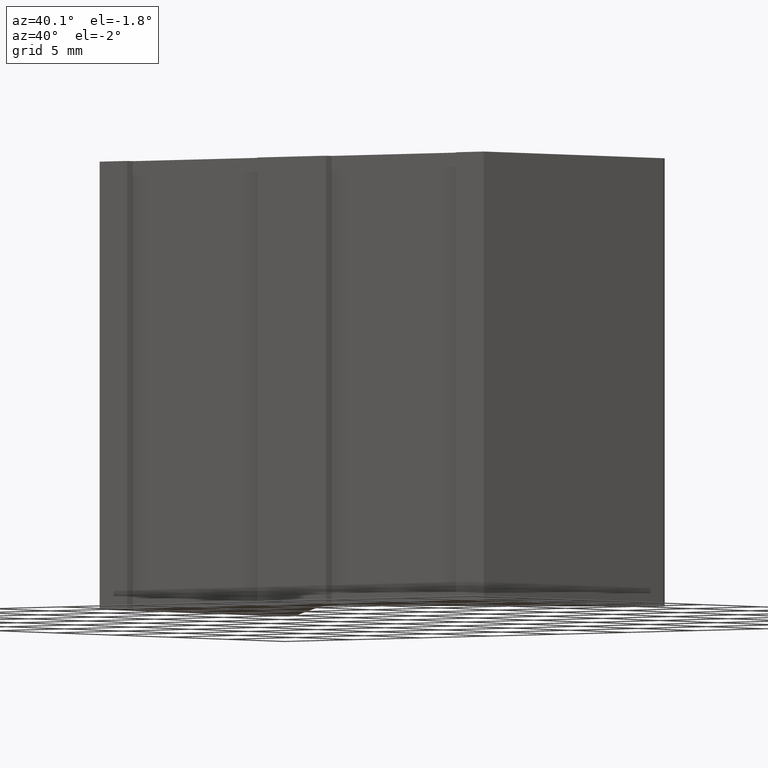
[diagram: clean part render]
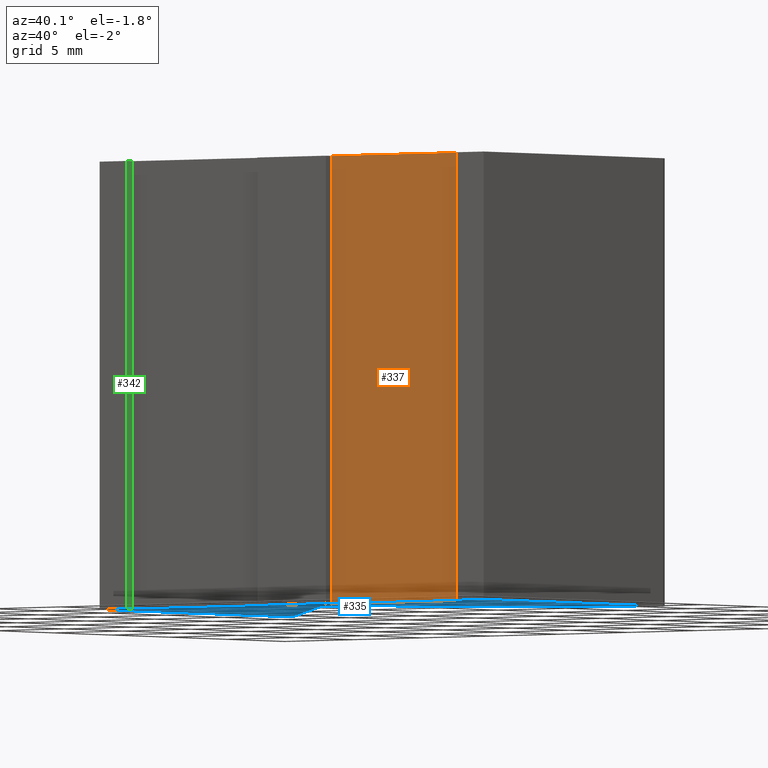
[diagram: same view with three faces highlighted in distinct colors, each labeled with its STEP entity id]
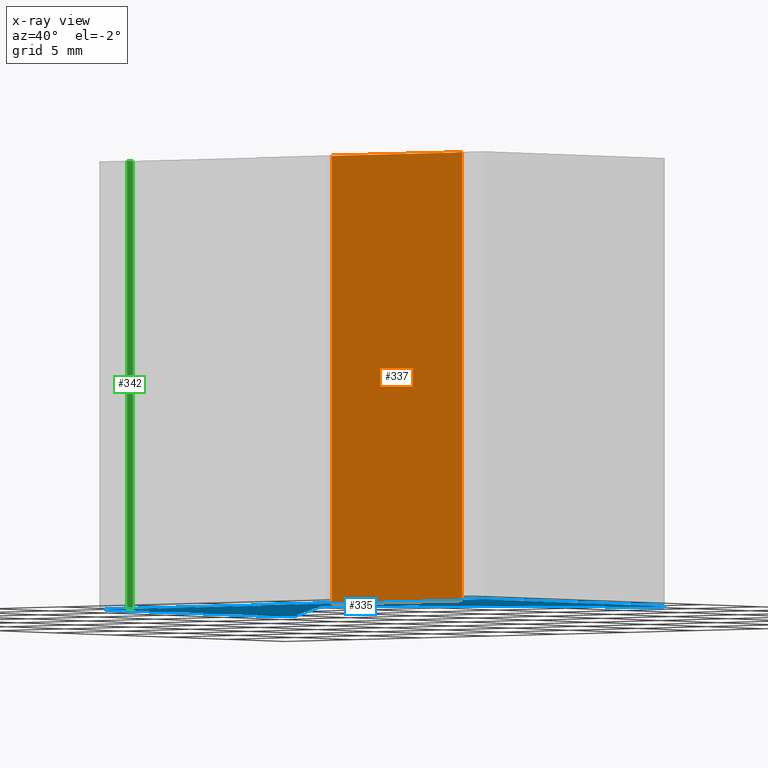
[diagram: x-ray of the same camera — body ghosted, the three highlighted faces saturated]
A machine part, auxiliary view with three faces highlighted in distinct colors.
The next image is the same camera in x-ray (body ghosted, the three faces saturated) — at least one of them is partly hidden behind the body in this view.
Their STEP definitions:

[orange] entity #337 — the highlighted planar face has unit normal (-0, -1, 0).
#20=FACE_OUTER_BOUND('',#38,.T.);
#38=EDGE_LOOP('',(#244,#245,#246,#247));
#63=LINE('',#502,#105);
#74=LINE('',#530,#116);
#76=LINE('',#534,#118);
#77=LINE('',#535,#119);
#105=VECTOR('',#407,10.);
#116=VECTOR('',#426,10.);
#118=VECTOR('',#430,10.);
#119=VECTOR('',#431,10.);
#147=VERTEX_POINT('',#499);
#148=VERTEX_POINT('',#501);
#161=VERTEX_POINT('',#528);
#162=VERTEX_POINT('',#533);
#179=EDGE_CURVE('',#148,#147,#63,.T.);
#193=EDGE_CURVE('',#161,#147,#74,.T.);
#195=EDGE_CURVE('',#161,#162,#76,.T.);
#196=EDGE_CURVE('',#162,#148,#77,.T.);
#244=ORIENTED_EDGE('',*,*,#195,.T.);
#245=ORIENTED_EDGE('',*,*,#196,.T.);
#246=ORIENTED_EDGE('',*,*,#179,.T.);
#247=ORIENTED_EDGE('',*,*,#193,.F.);
#322=PLANE('',#381);
#337=ADVANCED_FACE('',(#20),#322,.T.);
#381=AXIS2_PLACEMENT_3D('',#532,#428,#429);
#407=DIRECTION('',(1.,-9.49532850008358E-17,0.));
#426=DIRECTION('',(0.,0.,-1.));
#428=DIRECTION('center_axis',(-9.49532850008358E-17,-1.,0.));
#429=DIRECTION('ref_axis',(0.,0.,-1.));
#430=DIRECTION('',(-1.,9.49532850008358E-17,0.));
#431=DIRECTION('',(0.,0.,-1.));
#499=CARTESIAN_POINT('',(12.,0.5,-12.5));
#501=CARTESIAN_POINT('',(2.5,0.500000000000001,-12.5));
#502=CARTESIAN_POINT('',(12.,0.5,-12.5));
#528=CARTESIAN_POINT('',(12.,0.5,12.5));
#530=CARTESIAN_POINT('',(12.,0.5,0.));
#532=CARTESIAN_POINT('Origin',(12.,0.5,0.));
#533=CARTESIAN_POINT('',(2.5,0.500000000000001,12.5));
#534=CARTESIAN_POINT('',(12.,0.5,12.5));
#535=CARTESIAN_POINT('',(2.5,0.500000000000001,0.));

[blue] entity #335 — the highlighted planar face has unit normal (0, 0, 1).
#18=FACE_OUTER_BOUND('',#36,.T.);
#36=EDGE_LOOP('',(#224,#225,#226,#227,#228,#229,#230,#231,#232,#233,#234,
#235,#236,#237,#238,#239));
#54=CIRCLE('',#377,0.500000000000004);
#55=CIRCLE('',#378,2.04558441227157);
#56=CIRCLE('',#379,0.500000000000003);
#60=LINE('',#496,#102);
#61=LINE('',#498,#103);
#62=LINE('',#500,#104);
#63=LINE('',#502,#105);
#64=LINE('',#504,#106);
#65=LINE('',#506,#107);
#66=LINE('',#508,#108);
#67=LINE('',#510,#109);
#68=LINE('',#512,#110);
#69=LINE('',#514,#111);
#70=LINE('',#516,#112);
#71=LINE('',#520,#113);
#72=LINE('',#524,#114);
#102=VECTOR('',#404,10.);
#103=VECTOR('',#405,10.);
#104=VECTOR('',#406,10.);
#105=VECTOR('',#407,10.);
#106=VECTOR('',#408,10.);
#107=VECTOR('',#409,10.);
#108=VECTOR('',#410,10.);
#109=VECTOR('',#411,10.);
#110=VECTOR('',#412,10.);
#111=VECTOR('',#413,10.);
#112=VECTOR('',#414,10.);
#113=VECTOR('',#417,10.);
#114=VECTOR('',#420,10.);
#144=VERTEX_POINT('',#494);
#145=VERTEX_POINT('',#495);
#146=VERTEX_POINT('',#497);
#147=VERTEX_POINT('',#499);
#148=VERTEX_POINT('',#501);
#149=VERTEX_POINT('',#503);
#150=VERTEX_POINT('',#505);
#151=VERTEX_POINT('',#507);
#152=VERTEX_POINT('',#509);
#153=VERTEX_POINT('',#511);
#154=VERTEX_POINT('',#513);
#155=VERTEX_POINT('',#515);
#156=VERTEX_POINT('',#517);
#157=VERTEX_POINT('',#519);
#158=VERTEX_POINT('',#521);
#159=VERTEX_POINT('',#523);
#176=EDGE_CURVE('',#144,#145,#60,.T.);
#177=EDGE_CURVE('',#146,#144,#61,.T.);
#178=EDGE_CURVE('',#147,#146,#62,.T.);
#179=EDGE_CURVE('',#148,#147,#63,.T.);
#180=EDGE_CURVE('',#149,#148,#64,.T.);
#181=EDGE_CURVE('',#150,#149,#65,.T.);
#182=EDGE_CURVE('',#151,#150,#66,.T.);
#183=EDGE_CURVE('',#152,#151,#67,.T.);
#184=EDGE_CURVE('',#153,#152,#68,.T.);
#185=EDGE_CURVE('',#154,#153,#69,.T.);
#186=EDGE_CURVE('',#155,#154,#70,.T.);
#187=EDGE_CURVE('',#156,#155,#54,.T.);
#188=EDGE_CURVE('',#157,#156,#71,.T.);
#189=EDGE_CURVE('',#158,#157,#55,.T.);
#190=EDGE_CURVE('',#159,#158,#72,.T.);
#191=EDGE_CURVE('',#145,#159,#56,.T.);
#224=ORIENTED_EDGE('',*,*,#176,.F.);
#225=ORIENTED_EDGE('',*,*,#177,.F.);
#226=ORIENTED_EDGE('',*,*,#178,.F.);
#227=ORIENTED_EDGE('',*,*,#179,.F.);
#228=ORIENTED_EDGE('',*,*,#180,.F.);
#229=ORIENTED_EDGE('',*,*,#181,.F.);
#230=ORIENTED_EDGE('',*,*,#182,.F.);
#231=ORIENTED_EDGE('',*,*,#183,.F.);
#232=ORIENTED_EDGE('',*,*,#184,.F.);
#233=ORIENTED_EDGE('',*,*,#185,.F.);
#234=ORIENTED_EDGE('',*,*,#186,.F.);
#235=ORIENTED_EDGE('',*,*,#187,.F.);
#236=ORIENTED_EDGE('',*,*,#188,.F.);
#237=ORIENTED_EDGE('',*,*,#189,.F.);
#238=ORIENTED_EDGE('',*,*,#190,.F.);
#239=ORIENTED_EDGE('',*,*,#191,.F.);
#320=PLANE('',#376);
#335=ADVANCED_FACE('',(#18),#320,.F.);
#376=AXIS2_PLACEMENT_3D('',#493,#402,#403);
#377=AXIS2_PLACEMENT_3D('',#518,#415,#416);
#378=AXIS2_PLACEMENT_3D('',#522,#418,#419);
#379=AXIS2_PLACEMENT_3D('',#525,#421,#422);
#402=DIRECTION('center_axis',(0.,0.,1.));
#403=DIRECTION('ref_axis',(1.,0.,0.));
#404=DIRECTION('',(2.86509167645202E-16,1.,0.));
#405=DIRECTION('',(1.,0.,0.));
#406=DIRECTION('',(0.,-1.,0.));
#407=DIRECTION('',(1.,-9.49532850008358E-17,0.));
#408=DIRECTION('',(0.,1.,0.));
#409=DIRECTION('',(1.,0.,0.));
#410=DIRECTION('',(0.,-1.,0.));
#411=DIRECTION('',(1.,9.49532850008358E-17,0.));
#412=DIRECTION('',(0.,1.,0.));
#413=DIRECTION('',(1.,0.,0.));
#414=DIRECTION('',(2.86509167645202E-16,-1.,0.));
#415=DIRECTION('center_axis',(0.,0.,1.));
#416=DIRECTION('ref_axis',(-0.707106781186547,-0.707106781186547,0.));
#417=DIRECTION('',(-0.707106781186548,0.707106781186547,0.));
#418=DIRECTION('center_axis',(0.,0.,-1.));
#419=DIRECTION('ref_axis',(-0.707106781186547,-0.707106781186548,0.));
#420=DIRECTION('',(-0.707106781186548,-0.707106781186547,0.));
#421=DIRECTION('center_axis',(0.,0.,1.));
#422=DIRECTION('ref_axis',(-1.,0.,0.));
#493=CARTESIAN_POINT('Origin',(-2.77555756156289E-16,6.32967069798019,-12.5));
#494=CARTESIAN_POINT('',(14.,0.,-12.5));
#495=CARTESIAN_POINT('',(14.,15.5,-12.5));
#496=CARTESIAN_POINT('',(14.,15.5,-12.5));
#497=CARTESIAN_POINT('',(12.,0.,-12.5));
#498=CARTESIAN_POINT('',(14.,0.,-12.5));
#499=CARTESIAN_POINT('',(12.,0.5,-12.5));
#500=CARTESIAN_POINT('',(12.,0.,-12.5));
#501=CARTESIAN_POINT('',(2.5,0.500000000000001,-12.5));
#502=CARTESIAN_POINT('',(12.,0.5,-12.5));
#503=CARTESIAN_POINT('',(2.5,0.,-12.5));
#504=CARTESIAN_POINT('',(2.5,0.500000000000001,-12.5));
#505=CARTESIAN_POINT('',(-2.5,0.,-12.5));
#506=CARTESIAN_POINT('',(2.5,0.,-12.5));
#507=CARTESIAN_POINT('',(-2.5,0.500000000000001,-12.5));
#508=CARTESIAN_POINT('',(-2.5,0.,-12.5));
#509=CARTESIAN_POINT('',(-12.,0.5,-12.5));
#510=CARTESIAN_POINT('',(-2.5,0.500000000000001,-12.5));
#511=CARTESIAN_POINT('',(-12.,0.,-12.5));
#512=CARTESIAN_POINT('',(-12.,0.5,-12.5));
#513=CARTESIAN_POINT('',(-14.,0.,-12.5));
#514=CARTESIAN_POINT('',(-12.,0.,-12.5));
#515=CARTESIAN_POINT('',(-14.,15.5,-12.5));
#516=CARTESIAN_POINT('',(-14.,0.,-12.5));
#517=CARTESIAN_POINT('',(-13.1464466094067,15.8535533905933,-12.5));
#518=CARTESIAN_POINT('Origin',(-13.5,15.5,-12.5));
#519=CARTESIAN_POINT('',(-1.44644660940672,4.15355339059328,-12.5));
#520=CARTESIAN_POINT('',(-13.1464466094067,15.8535533905933,-12.5));
#521=CARTESIAN_POINT('',(1.44644660940672,4.15355339059328,-12.5));
#522=CARTESIAN_POINT('Origin',(0.,5.6,-12.5));
#523=CARTESIAN_POINT('',(13.1464466094067,15.8535533905933,-12.5));
#524=CARTESIAN_POINT('',(1.44644660940672,4.15355339059328,-12.5));
#525=CARTESIAN_POINT('Origin',(13.5,15.5,-12.5));

[green] entity #342 — the highlighted planar face has unit normal (1, 0, 0).
#25=FACE_OUTER_BOUND('',#43,.T.);
#43=EDGE_LOOP('',(#264,#265,#266,#267));
#68=LINE('',#512,#110);
#85=LINE('',#551,#127);
#86=LINE('',#554,#128);
#87=LINE('',#555,#129);
#110=VECTOR('',#412,10.);
#127=VECTOR('',#447,10.);
#128=VECTOR('',#450,10.);
#129=VECTOR('',#451,10.);
#152=VERTEX_POINT('',#509);
#153=VERTEX_POINT('',#511);
#166=VERTEX_POINT('',#549);
#167=VERTEX_POINT('',#553);
#184=EDGE_CURVE('',#153,#152,#68,.T.);
#204=EDGE_CURVE('',#166,#152,#85,.T.);
#205=EDGE_CURVE('',#166,#167,#86,.T.);
#206=EDGE_CURVE('',#167,#153,#87,.T.);
#264=ORIENTED_EDGE('',*,*,#205,.T.);
#265=ORIENTED_EDGE('',*,*,#206,.T.);
#266=ORIENTED_EDGE('',*,*,#184,.T.);
#267=ORIENTED_EDGE('',*,*,#204,.F.);
#327=PLANE('',#386);
#342=ADVANCED_FACE('',(#25),#327,.T.);
#386=AXIS2_PLACEMENT_3D('',#552,#448,#449);
#412=DIRECTION('',(0.,1.,0.));
#447=DIRECTION('',(0.,0.,-1.));
#448=DIRECTION('center_axis',(1.,0.,0.));
#449=DIRECTION('ref_axis',(0.,0.,-1.));
#450=DIRECTION('',(0.,-1.,0.));
#451=DIRECTION('',(0.,0.,-1.));
#509=CARTESIAN_POINT('',(-12.,0.5,-12.5));
#511=CARTESIAN_POINT('',(-12.,0.,-12.5));
#512=CARTESIAN_POINT('',(-12.,0.5,-12.5));
#549=CARTESIAN_POINT('',(-12.,0.5,12.5));
#551=CARTESIAN_POINT('',(-12.,0.5,0.));
#552=CARTESIAN_POINT('Origin',(-12.,0.5,0.));
#553=CARTESIAN_POINT('',(-12.,0.,12.5));
#554=CARTESIAN_POINT('',(-12.,0.5,12.5));
#555=CARTESIAN_POINT('',(-12.,0.,0.));